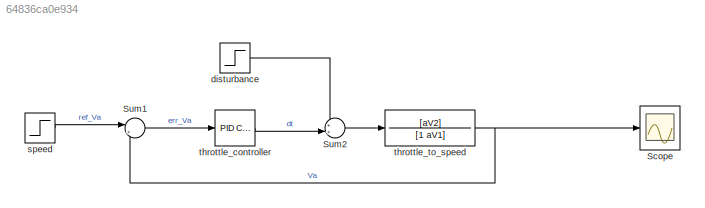
MODEL slx_64836ca0e934
KIND model
CONFIG AbsTol = auto
CONFIG EnableMultiTasking = off
CONFIG FixedStep = auto
CONFIG MaxStep = auto
CONFIG MinStep = auto
CONFIG RelTol = 1e-3
CONFIG SampleTimeConstraint = Unconstrained
CONFIG SolverName = VariableStepAuto
CONFIG StartTime = 0.0
CONFIG StopTime = 10.0
BLOCK [Scope] Scope
  Floating = off
  NumInputPorts = 1
  ScopeSpecificationString = Simulink.scopes.TimeScopeBlockCfg('CurrentConfiguration', extmgr.ConfigurationSet(extmgr.Configuration('Core','General UI',true),extmgr.Configuration('Core','Source UI',true),extmgr.Configuration('Sources','WiredSimulink',true),extmgr.Configuration('Visuals','Time Domain',true,'SerializedDisplays',{struct('MinYLimReal','-0.12757','MaxYLimReal','1.14813','YLabelReal','','MinYLimMag','0.00000','MaxY...<+1322ch>
BLOCK [Sum] Sum1
  Inputs = |+-
BLOCK [Sum] Sum2
  Inputs = ++|
BLOCK [Step] disturbance
  SampleTime = 0
  Time = 5
BLOCK [Step] speed
  SampleTime = 0
BLOCK [Reference] throttle_controller  REF=slpidlib/PID Controller
  LibrarySourceBlock = simulink/Continuous/PID Controller
  SourceBlock = slpidlib/PID Controller
  SourceType = PID 1dof
BLOCK [TransferFcn] throttle_to_speed
  Denominator = [1 aV1]
  Numerator = [aV2]
LINE Sum1:1 -> throttle_controller:1
LINE Sum2:1 -> throttle_to_speed:1
LINE disturbance:1 -> Sum2:1
LINE speed:1 -> Sum1:1
LINE throttle_controller:1 -> Sum2:2
NET throttle_to_speed:1 -> Scope:1, Sum1:2
note: NET lines group one-source signal fan-out (src -> all destinations, sorted); 1:1 wires keep LINE
